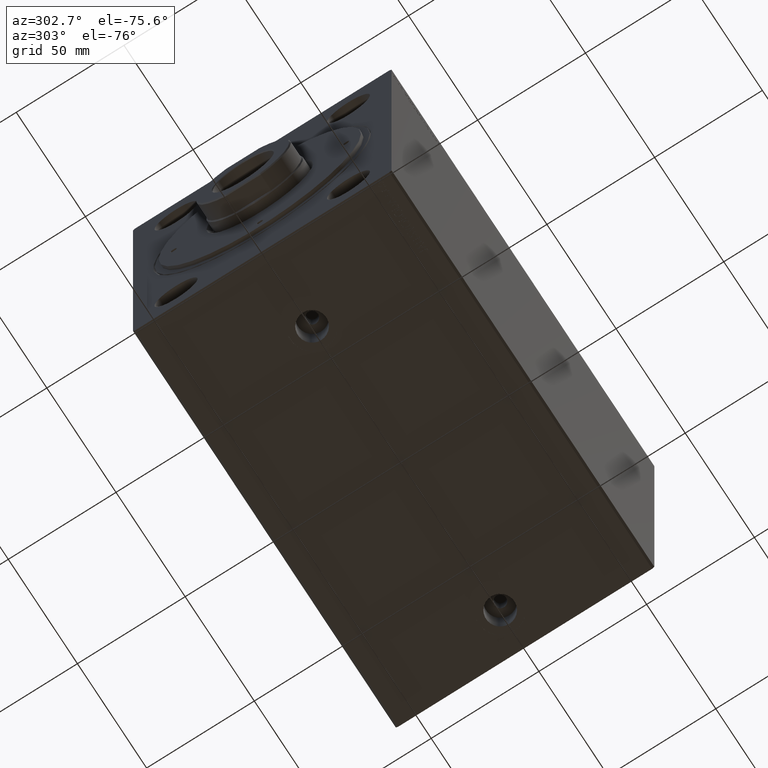
[diagram: clean part render]
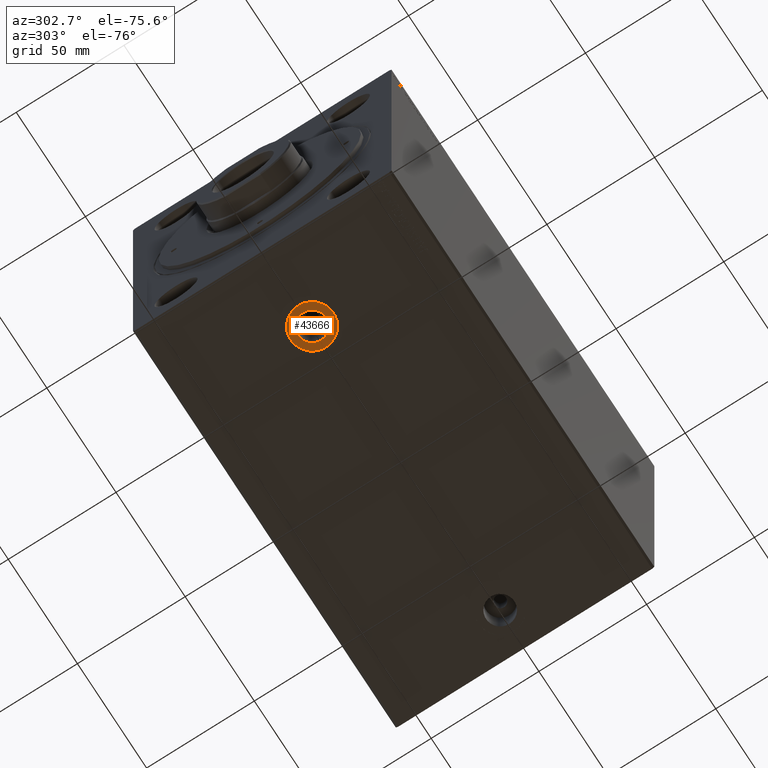
[diagram: same view with one face highlighted and labeled with its STEP entity id]
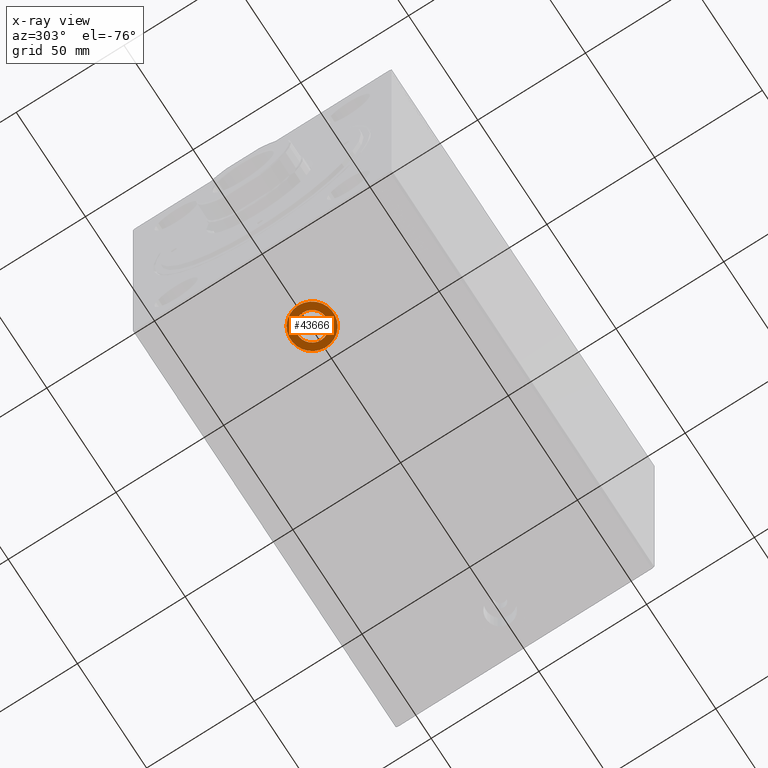
[diagram: x-ray of the same camera — body ghosted, the highlighted face saturated]
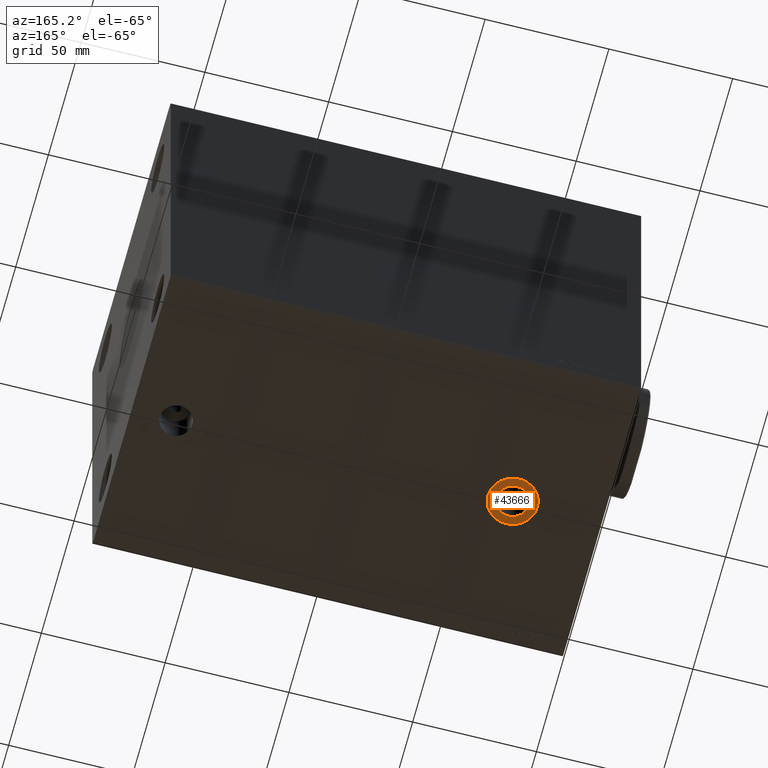
[diagram: same view with one face highlighted and labeled with its STEP entity id]
A machine part, auxiliary view. The second image highlights one B-rep face of the part: STEP entity #43666.
The next image is the same camera in x-ray: the body ghosted, the highlighted face saturated — about 0% of this face is hidden behind the body in this view.
A second angle (auxiliary view) of the same face is appended — the face is thin or edge-on in the first view.
In plain terms, the highlighted planar face has unit normal (0, 0, -1).
Its self-contained STEP definition (entity closure, byte-faithful):
#2311 = CIRCLE ( 'NONE', #10123, 6.580000000000002736 ) ;
#4914 = CARTESIAN_POINT ( 'NONE',  ( 36.00000000000000000, -9.604647775358777085E-15, -79.90000000000000568 ) ) ;
#5122 = ORIENTED_EDGE ( 'NONE', *, *, #23319, .F. ) ;
#6180 = DIRECTION ( 'NONE',  ( -1.000000000000000000, 0.000000000000000000, 0.000000000000000000 ) ) ;
#6462 = VERTEX_POINT ( 'NONE', #24101 ) ;
#7962 = CIRCLE ( 'NONE', #32814, 10.00000000000000178 ) ;
#8575 = ORIENTED_EDGE ( 'NONE', *, *, #36266, .F. ) ;
#8649 = VERTEX_POINT ( 'NONE', #14962 ) ;
#9728 = DIRECTION ( 'NONE',  ( 0.000000000000000000, 0.000000000000000000, -1.000000000000000000 ) ) ;
#10123 = AXIS2_PLACEMENT_3D ( 'NONE', #43113, #9728, #6180 ) ;
#10156 = CIRCLE ( 'NONE', #16567, 10.00000000000000178 ) ;
#11599 = DIRECTION ( 'NONE',  ( 0.000000000000000000, 0.000000000000000000, -1.000000000000000000 ) ) ;
#14962 = CARTESIAN_POINT ( 'NONE',  ( 42.57999999999999829, -8.798830181519818043E-15, -79.90000000000000568 ) ) ;
#15676 = EDGE_LOOP ( 'NONE', ( #23528, #23331 ) ) ;
#16397 = FACE_OUTER_BOUND ( 'NONE', #15676, .T. ) ;
#16567 = AXIS2_PLACEMENT_3D ( 'NONE', #42158, #24813, #21704 ) ;
#19153 = AXIS2_PLACEMENT_3D ( 'NONE', #24830, #41739, #34830 ) ;
#19747 = FACE_BOUND ( 'NONE', #33644, .T. ) ;
#19958 = DIRECTION ( 'NONE',  ( 0.000000000000000000, 0.000000000000000000, -1.000000000000000000 ) ) ;
#21590 = CARTESIAN_POINT ( 'NONE',  ( 29.41999999999999460, -9.604647775358777085E-15, -79.90000000000000568 ) ) ;
#21704 = DIRECTION ( 'NONE',  ( -1.000000000000000000, 0.000000000000000000, 0.000000000000000000 ) ) ;
#23319 = EDGE_CURVE ( 'NONE', #8649, #32423, #38339, .T. ) ;
#23331 = ORIENTED_EDGE ( 'NONE', *, *, #25687, .T. ) ;
#23449 = CARTESIAN_POINT ( 'NONE',  ( 25.99999999999999645, -9.604647775358777085E-15, -79.90000000000000568 ) ) ;
#23528 = ORIENTED_EDGE ( 'NONE', *, *, #38694, .T. ) ;
#24101 = CARTESIAN_POINT ( 'NONE',  ( 46.00000000000000000, -8.380000976211422448E-15, -79.90000000000000568 ) ) ;
#24729 = DIRECTION ( 'NONE',  ( -1.000000000000000000, 0.000000000000000000, 0.000000000000000000 ) ) ;
#24813 = DIRECTION ( 'NONE',  ( 0.000000000000000000, 0.000000000000000000, -1.000000000000000000 ) ) ;
#24830 = CARTESIAN_POINT ( 'NONE',  ( 36.00000000000000000, -9.604647775358777085E-15, -79.90000000000000568 ) ) ;
#25687 = EDGE_CURVE ( 'NONE', #6462, #33930, #7962, .T. ) ;
#29963 = PLANE ( 'NONE',  #36580 ) ;
#32423 = VERTEX_POINT ( 'NONE', #21590 ) ;
#32814 = AXIS2_PLACEMENT_3D ( 'NONE', #4914, #11599, #24729 ) ;
#33516 = DIRECTION ( 'NONE',  ( -1.000000000000000000, 0.000000000000000000, -0.000000000000000000 ) ) ;
#33644 = EDGE_LOOP ( 'NONE', ( #8575, #5122 ) ) ;
#33930 = VERTEX_POINT ( 'NONE', #23449 ) ;
#34830 = DIRECTION ( 'NONE',  ( -1.000000000000000000, 0.000000000000000000, 0.000000000000000000 ) ) ;
#36266 = EDGE_CURVE ( 'NONE', #32423, #8649, #2311, .T. ) ;
#36580 = AXIS2_PLACEMENT_3D ( 'NONE', #43330, #19958, #33516 ) ;
#38339 = CIRCLE ( 'NONE', #19153, 6.580000000000002736 ) ;
#38694 = EDGE_CURVE ( 'NONE', #33930, #6462, #10156, .T. ) ;
#41739 = DIRECTION ( 'NONE',  ( 0.000000000000000000, 0.000000000000000000, -1.000000000000000000 ) ) ;
#42158 = CARTESIAN_POINT ( 'NONE',  ( 36.00000000000000000, -9.604647775358777085E-15, -79.90000000000000568 ) ) ;
#43113 = CARTESIAN_POINT ( 'NONE',  ( 36.00000000000000000, -9.604647775358777085E-15, -79.90000000000000568 ) ) ;
#43330 = CARTESIAN_POINT ( 'NONE',  ( 0.000000000000000000, 0.000000000000000000, -79.90000000000000568 ) ) ;
#43666 = ADVANCED_FACE ( 'NONE', ( #19747, #16397 ), #29963, .T. ) ;